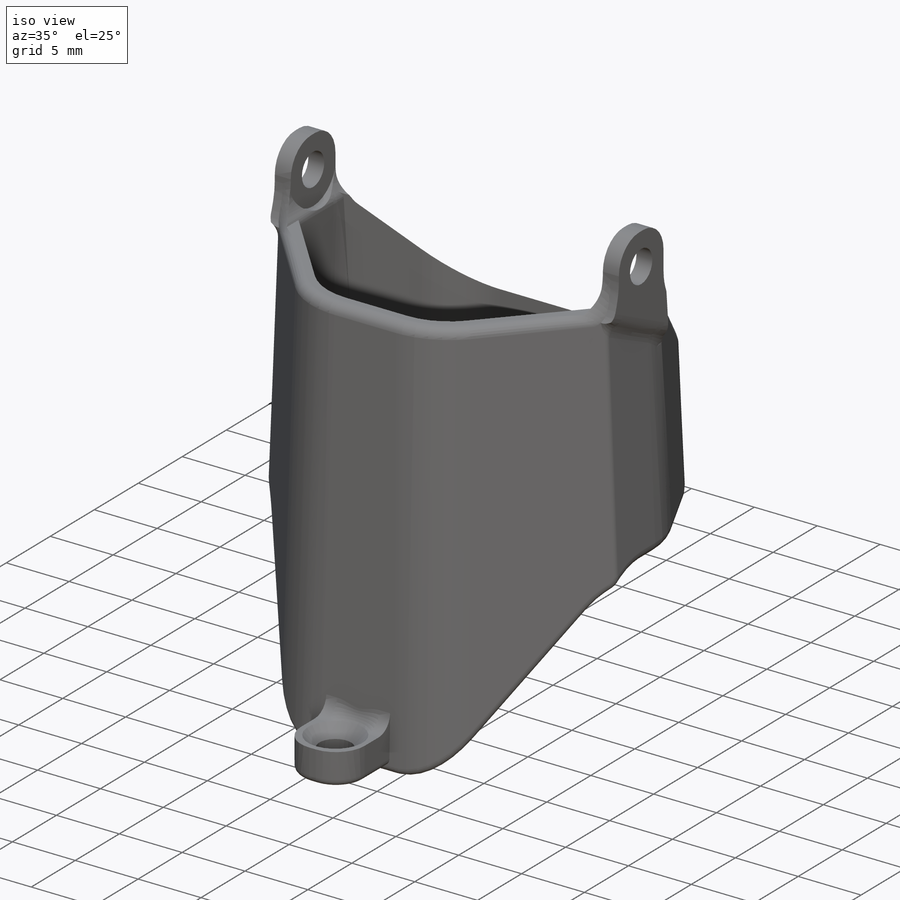
[diagram: iso view]
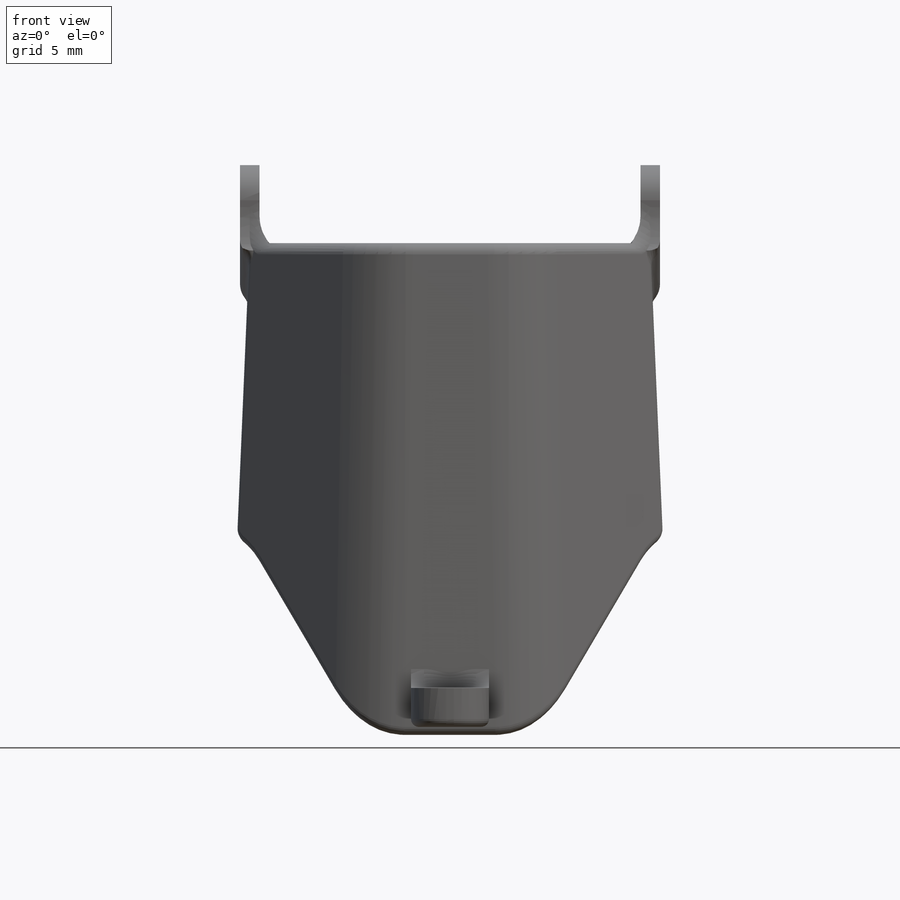
[diagram: front view]
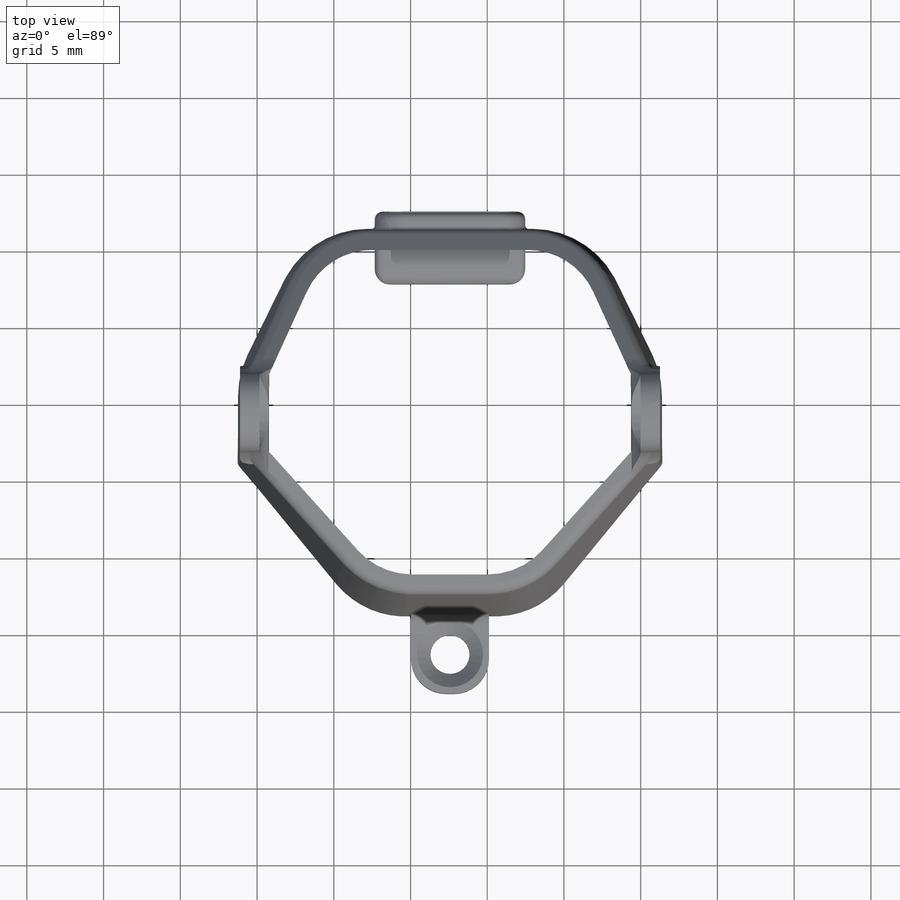
[diagram: top view]
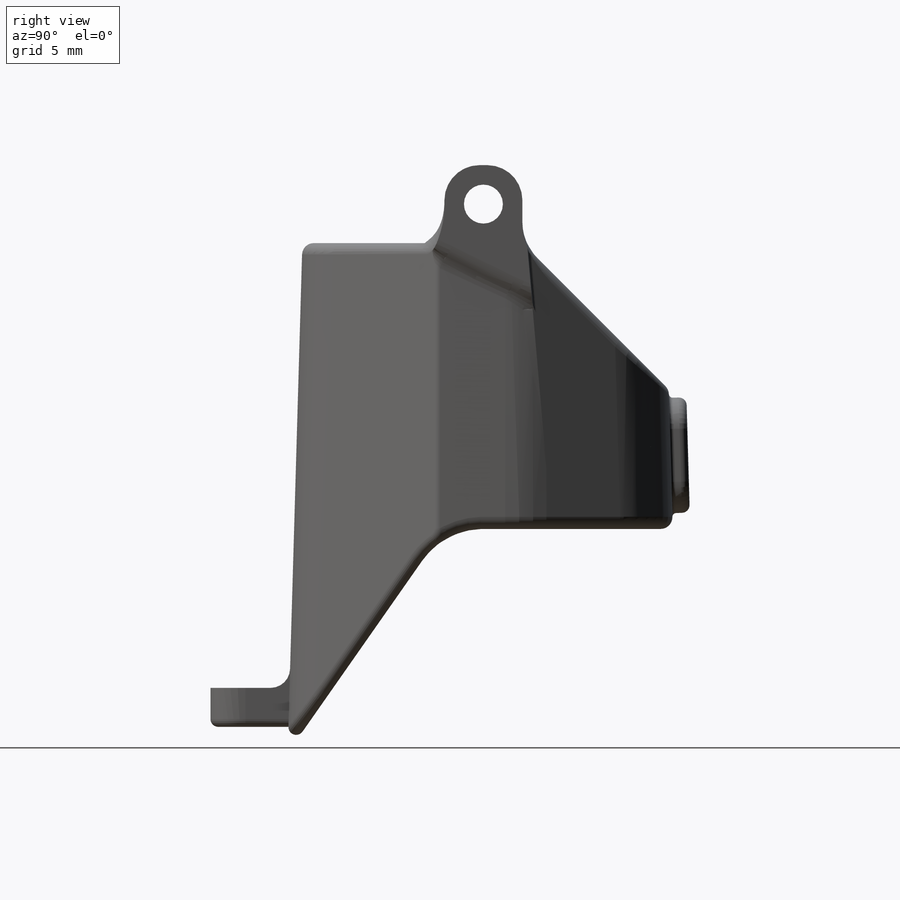
[diagram: right view]
SOLIDWORKS PART (.sldprt)
format: sldprt  version: not decoded by parser v0  size: 4,889,600 bytes
history: native  units: mm
features: sketch x32, cut_extrude x22, fillet x20, plane x10, extrude x6, material x1, shell x1, mirror x1, chamfer x1 (+16 scaffold rows collapsed)
feature tree (110):
  scaffold x16  (default folders/planes/origin — collapsed)
  material  "Material <not specified>"
  sketch  "girth_bottom"  dims[c1.D4=2.3368mm c1.D3=5.08mm c1.D1=~40.198806mm c1.D6=25.146mm c1.D2=~22.826773mm c2.D3=8.7249mm c2.D5=2.54mm c2.D6=5.08mm c2.D1=~15.077983mm c2.D2=~8.537606mm c3.D3=5.08mm c3.D5=~10.315359mm c3.bottomWidthz=22.606mm]
  sketch  "finger_length"  dims[c1.D1=~52.675108mm c1.D3=63.5mm c2.D1=51.816mm c2.D2=8.636mm c2.heightz=51.816mm]
  plane  "Plane3"
  sketch  "girth_top"  dims[c1.D4=2.3368mm c1.D3=5.08mm c1.D1=~40.198806mm c1.D6=19.7358mm c1.D2=~22.826773mm c2.D3=8.7249mm c2.D5=2.54mm c2.D6=5.08mm c2.D1=~11.859087mm c2.D2=~6.714971mm c3.D3=5.08mm c3.D5=~8.113204mm c3.topWidthz=17.78mm]
  sketch  "Sketch8"  dims[c1.D1=~21.166667mm c1.D2=~21.98472mm c2.D2=45.0deg c2.D3=~11.680502mm c3.D3=45.0deg c3.D4=~12.642562mm c4.D4=45.0deg c4.D2=63.5mm c4.D3=69.85mm c5.D4=~26.458333mm]
  cut_extrude  "Cut-Extrude2"  [1 undecoded]
  sketch  "Sketch9"
  sketch  "Sketch11"  dims[c1.D1=19.05mm c1.D2=~18.996599mm c2.D1=19.05mm c2.D2=19.05mm c2.D3=12.7mm]
  cut_extrude  "Cut-Extrude3"  [1 undecoded]
  sketch  "Sketch12"
  extrude  "Boss-Extrude1"  Depth=5.08mm
  sketch  "Sketch13"  dims[D1=2.54mm]
  cut_extrude  "Cut-Extrude4"  [1 undecoded]
  fillet  "Fillet1"  Radius=2.286mm
  sketch  "Sketch14"  dims[D1=2.54mm D2=2.54mm D3=2.54mm D4=2.54mm]
  extrude  "Boss-Extrude3"  Depth=12.7mm
  plane  "Plane5"
  sketch  "Sketch44"
  cut_extrude  "Cut-Extrude32"  [1 undecoded]
  plane  "Plane6"
  sketch  "Sketch45"
  cut_extrude  "Cut-Extrude33"  [1 undecoded]
  plane  "Plane7"
  sketch  "Sketch46"
  cut_extrude  "Cut-Extrude34"  [1 undecoded]
  plane  "Plane8"
  sketch  "Sketch47"
  cut_extrude  "Cut-Extrude35"  [1 undecoded]
  plane  "Plane9"
  sketch  "Sketch48"
  cut_extrude  "Cut-Extrude36"  [1 undecoded]
  plane  "Plane10"
  sketch  "Sketch49"
  cut_extrude  "Cut-Extrude37"  [1 undecoded]
  plane  "Plane11"
  sketch  "Sketch50"
  cut_extrude  "Cut-Extrude38"  [1 undecoded]
  plane  "Plane12"
  sketch  "Sketch51"
  cut_extrude  "Cut-Extrude39"  [1 undecoded]
  sketch  "Sketch24"  dims[D1=~12.705066mm]
  cut_extrude  "Cut-Extrude15"  [1 undecoded]
  sketch  "Sketch25"
  cut_extrude  "Cut-Extrude16"  [1 undecoded]
  sketch  "Sketch26"
  extrude  "Boss-Extrude4"  Depth=5.08mm
  sketch  "Sketch27"  dims[D1=2.54mm]
  cut_extrude  "Cut-Extrude17"  [1 undecoded]
  fillet  "Fillet2"  Radius=2.286mm
  fillet  "Fillet3"  Radius=4.826mm
  fillet  "Fillet4"  Radius=4.826mm
  shell  "Shell1"  Thickness=1.27mm
  fillet  "Fillet5"  Radius=0.762mm
  sketch  "Sketch29"
  cut_extrude  "Cut-Extrude18"  [1 undecoded]
  fillet  "Fillet6"  Radius=2.794mm
  fillet  "Fillet7"  Radius=1.016mm
  sketch  "Sketch30"
  cut_extrude  "Cut-Extrude20"  [1 undecoded]
  fillet  "Fillet8"  Radius=3.302mm
  fillet  "Fillet9"  Radius=4.064mm
  fillet  "Fillet11"  Radius=0.508mm
  sketch  "Sketch31"  dims[c1.D1=~0.893751mm c1.D2=6.35mm c2.D1=25.4mm]
  cut_extrude  "Cut-Extrude23"  [1 undecoded]
  sketch  "Sketch32"  dims[D1=~6.269502mm D2=~2.174962mm D3=9.8044mm D4=7.5184mm]
  sketch  "Sketch35"  dims[D1=0.0mm D2=0.0mm D3=0.0mm D4=0.0mm]
  extrude  "Boss-Extrude6"  Depth=0.635mm
  fillet  "Fillet58"  Radius=0.254mm
  fillet  "Fillet59"  Radius=1.27mm
  mirror  "Mirror1"
  extrude  "Boss-Extrude7"  Depth=3.556mm
  sketch  "Sketch38"  dims[D1=1.651mm]
  cut_extrude  "Cut-Extrude27"  Depth=1.016mm
  sketch  "Sketch39"  dims[D1=0.635mm]
  cut_extrude  "Cut-Extrude28"  Depth=0.508mm
  sketch  "Sketch40"  dims[D1=5.0038mm]
  cut_extrude  "Cut-Extrude29"  [1 undecoded]
  fillet  "Fillet29"  Radius=2.032mm
  fillet  "Fillet30"  Radius=1.524mm
  fillet  "Fillet32"  Radius=0.508mm
  fillet  "Fillet35"  Radius=1.016mm
  sketch  "Sketch41"  dims[D1=2.032mm D2=3.81mm D3=2.032mm]
  cut_extrude  "Cut-Extrude30"  Depth=2.26822mm
  plane  "Plane4"
  sketch  "Sketch42"  dims[D1=5.08mm D2=2.54mm]
  extrude  "Boss-Extrude8"  Depth=5.08mm
  sketch  "Sketch43"  dims[D1=2.54mm]
  cut_extrude  "Cut-Extrude31"  [1 undecoded]
  fillet  "Fillet51"  Radius=2.286mm
  fillet  "Fillet53"  Radius=0.508mm
  chamfer  "Chamfer1"  Distance=0.889mm Angle=45deg
  fillet  "Fillet56"  Radius=1.27mm
  fillet  "Fillet61"  Radius=0.508mm Height=63.5mm sectionWidth=25.146mm sectionWidth2=19.7358mm Thickness=0.0254mm
decode coverage: 49 of 83 modeling features carry decoded parameters
note: ~ marks probable driven/reference dimensions
note: 19 parameter values undecoded
summary: no parameter record found for 19 features
note: suppression state not decoded; provenance and decode notes live in map.json
